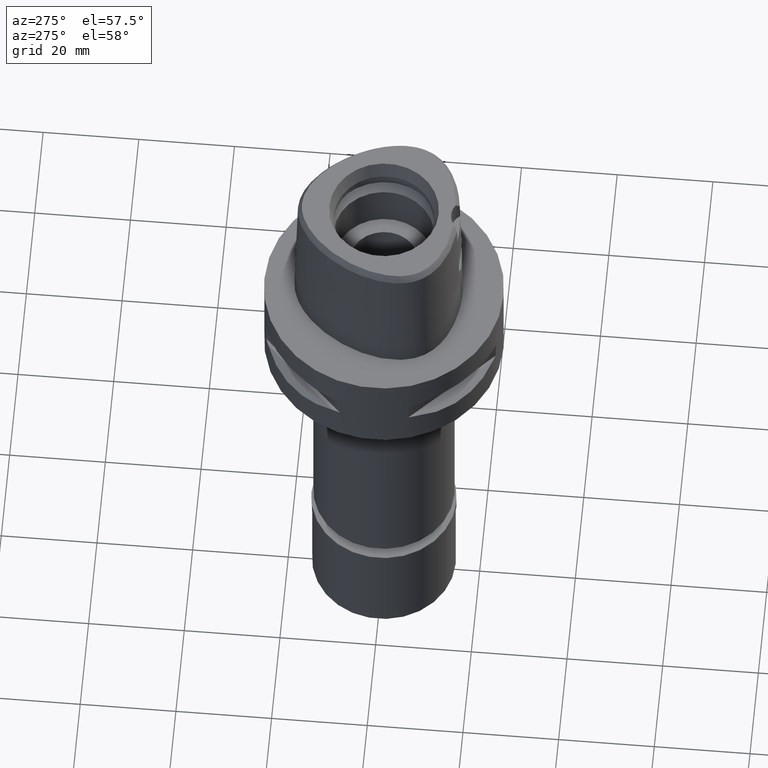
[diagram: clean part render]
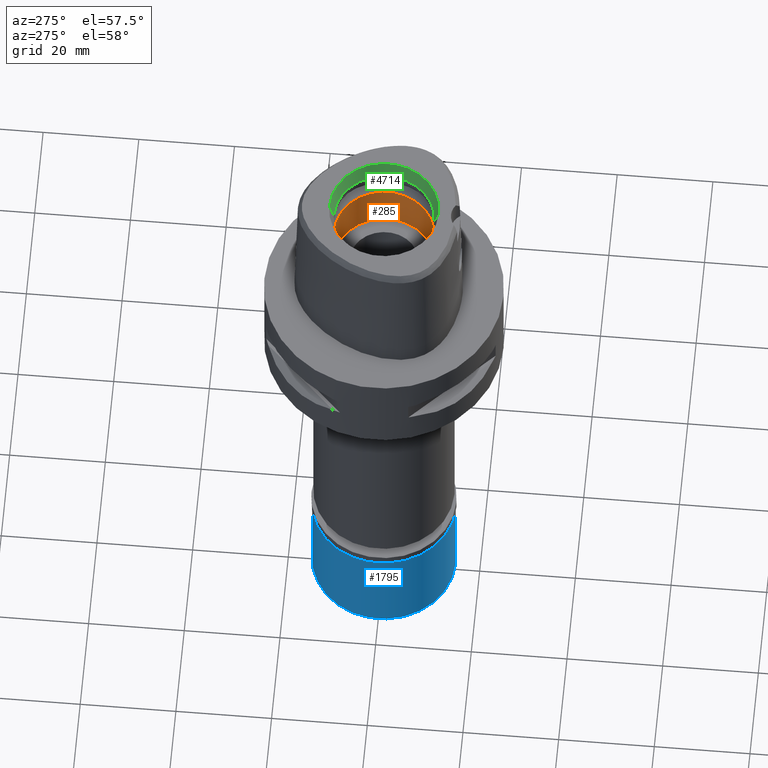
[diagram: same view with three faces highlighted in distinct colors, each labeled with its STEP entity id]
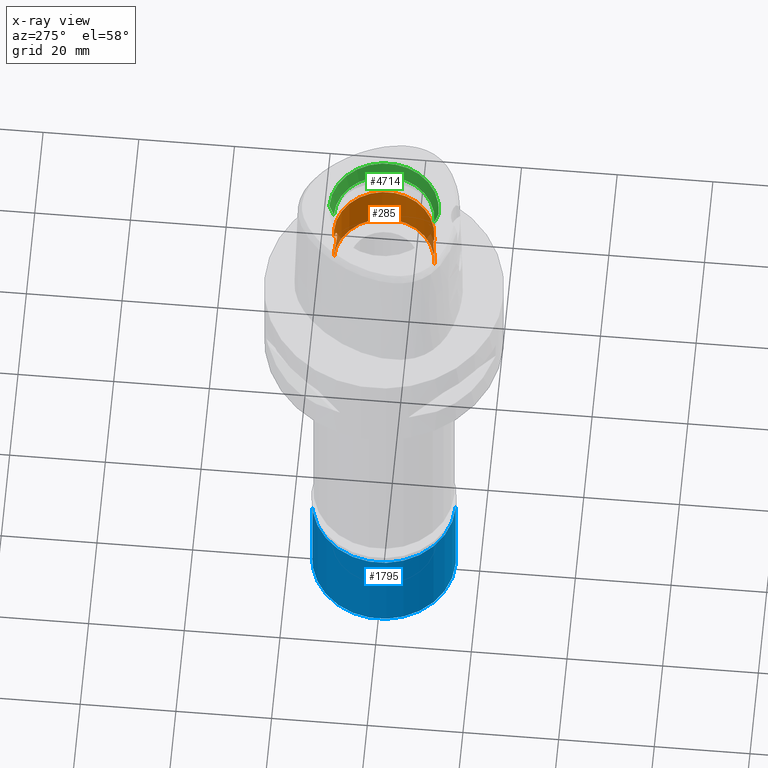
[diagram: x-ray of the same camera — body ghosted, the three highlighted faces saturated]
A machine part, auxiliary view with three faces highlighted in distinct colors.
The next image is the same camera in x-ray (body ghosted, the three faces saturated) — at least one of them is partly hidden behind the body in this view.
Their STEP definitions:

[orange] entity #285 — the highlighted cylindrical surface (partial cylindrical patch) has radius 10.5 mm, axis along (0, 0, -1).
#15 = DIRECTION ( 'NONE',  ( 0.0000000000000000000, -1.000000000000000000, 0.0000000000000000000 ) ) ;
#46 = VERTEX_POINT ( 'NONE', #2469 ) ;
#54 = VECTOR ( 'NONE', #4138, 1000.000000000000000 ) ;
#55 = CARTESIAN_POINT ( 'NONE',  ( 2.528868665928027504, -10.19089896813328266, 15.70508855078493760 ) ) ;
#84 = CARTESIAN_POINT ( 'NONE',  ( 1.323896765677277765, -10.41651376008978325, 16.74949734448019356 ) ) ;
#99 = B_SPLINE_CURVE_WITH_KNOTS ( 'NONE', 3,
 ( #805, #829, #1990, #2311, #4286, #4257, #3479, #1917, #1177, #3829, #3126, #433, #84, #2332, #1202, #881, #481, #2388, #1940, #3521, #2706, #1521, #3037, #2649, #2724, #1143, #4610, #855, #4549, #3449, #2681, #1599, #779, #3091, #3805, #410, #3421, #3109, #55, #1226, #2364, #3880, #549, #128, #521, #4355, #920, #2822, #2778, #944, #3549, #4310, #1270, #4719, #3918, #3947, #2032, #1289, #1684, #152, #1309, #2404, #3185, #1643, #902, #4329, #3145, #4679, #2797, #1668, #2055, #3167, #4699, #2431, #3575, #173, #4666, #4795, #3272, #469, #595, #2396, #2110, #2508, #3132, #4271, #3222, #4031, #893, #995, #2879, #629, #3910, #3649, #493, #2769, #2141, #1713, #3624, #870, #4755, #1389, #2375, #3490 ),
 .UNSPECIFIED., .F., .F.,
 ( 4, 2, 2, 1, 1, 2, 2, 2, 2, 1, 1, 2, 2, 2, 2, 1, 2, 2, 2, 2, 1, 1, 1, 2, 2, 2, 2, 1, 2, 2, 2, 2, 2, 2, 2, 1, 1, 2, 2, 2, 2, 1, 1, 1, 2, 2, 2, 2, 2, 2, 1, 1, 1, 2, 2, 2, 2, 1, 2, 2, 4 ),
 ( 0.0000000000000000000, 0.06249999999992951472, 0.09374999999989434840, 0.1093749999998765987, 0.1171874999998677308, 0.1210937499998632622, 0.1249999999998588074, 0.1562499999998203382, 0.1718749999998008260, 0.1796874999997910560, 0.1835937499997860878, 0.1855468749997836175, 0.1874999999997811473, 0.2187499999997441213, 0.2343749999997252753, 0.2421874999997158384, 0.2460937499997114253, 0.2499999999997069844, 0.2812499999996705968, 0.2968749999996523337, 0.3046874999996431743, 0.3085937499996391775, 0.3105468749996372901, 0.3115234374996369571, 0.3124999999996366240, 0.3437499999996477262, 0.3593749999996534994, 0.3671874999996566080, 0.3710937499996579403, 0.3749999999996592170, 0.4374999999996792566, 0.4687499999996892486, 0.4999999999996992406, 0.5624999999997192246, 0.5937499999997293276, 0.6093749999997343236, 0.6171874999997368771, 0.6210937499997380984, 0.6249999999997393196, 0.6562499999997486455, 0.6718749999997531974, 0.6796874999997555289, 0.6835937499997566391, 0.6855468749997573052, 0.6865234374997576383, 0.6874999999997579714, 0.7187499999997785105, 0.7499999999997989386, 0.7812499999998194777, 0.7968749999998296918, 0.8046874999998347988, 0.8085937499998374633, 0.8105468749998386846, 0.8115234374998394618, 0.8124999999998401279, 0.8437499999998666622, 0.8593749999998798739, 0.8671874999998865352, 0.8710937499998897549, 0.8749999999998930855, 1.000000000000000000 ),
 .UNSPECIFIED. ) ;
#113 = VERTEX_POINT ( 'NONE', #3282 ) ;
#116 = CARTESIAN_POINT ( 'NONE',  ( 0.3776824852751655137, 10.50000000000000355, 17.05000000000000071 ) ) ;
#128 = CARTESIAN_POINT ( 'NONE',  ( 2.719700136812867708, -10.14177672420369447, 15.38140804886839419 ) ) ;
#144 = CARTESIAN_POINT ( 'NONE',  ( 0.0000000000000000000, 10.50000000000000000, 17.05000000000000071 ) ) ;
#152 = CARTESIAN_POINT ( 'NONE',  ( 2.954919872153779714, -10.07594969640612881, 13.23766054668898917 ) ) ;
#173 = CARTESIAN_POINT ( 'NONE',  ( 2.552427928396863166, -10.18503463177848545, 12.33038235610675137 ) ) ;
#178 = CARTESIAN_POINT ( 'NONE',  ( 2.912166724522398553, 10.08826516473213353, 14.90793074597647738 ) ) ;
#200 = CARTESIAN_POINT ( 'NONE',  ( 3.049999831026677377, 10.04726935032737245, 13.81489378007290014 ) ) ;
#234 = CARTESIAN_POINT ( 'NONE',  ( 2.484679344345229079, 10.20182652914184018, 12.23102453892497721 ) ) ;
#258 = CARTESIAN_POINT ( 'NONE',  ( 2.899493436784488232, 10.09216444762106946, 13.03050769528795172 ) ) ;
#283 = CARTESIAN_POINT ( 'NONE',  ( 2.531111734321449536, 10.19034130873206756, 12.29824294131261375 ) ) ;
#285 = ADVANCED_FACE ( 'NONE', ( #2617 ), #1184, .F. ) ;
#292 = AXIS2_PLACEMENT_3D ( 'NONE', #4690, #934, #3200 ) ;
#396 = CARTESIAN_POINT ( 'NONE',  ( 2.552365511455624070, 10.18505070645073651, 15.66971306030419342 ) ) ;
#397 = VECTOR ( 'NONE', #1851, 1000.000000000000000 ) ;
#410 = CARTESIAN_POINT ( 'NONE',  ( 2.500919610565563556, -10.19783081804284031, 15.74597536509110185 ) ) ;
#433 = CARTESIAN_POINT ( 'NONE',  ( 1.236957856289733648, -10.42717367617683877, 16.78940726311529374 ) ) ;
#446 = ORIENTED_EDGE ( 'NONE', *, *, #4447, .F. ) ;
#469 = CARTESIAN_POINT ( 'NONE',  ( 2.342968627457624908, -10.23558722573572766, 12.04475145765551147 ) ) ;
#481 = CARTESIAN_POINT ( 'NONE',  ( 1.601744847466686217, -10.37714138207295811, 16.59579339570974810 ) ) ;
#483 = CARTESIAN_POINT ( 'NONE',  ( 0.0000000000000000000, -10.50000000000000000, 17.05000000000000071 ) ) ;
#493 = CARTESIAN_POINT ( 'NONE',  ( 1.386948097363750909, -10.40799934146660455, 11.28311535730615667 ) ) ;
#521 = CARTESIAN_POINT ( 'NONE',  ( 2.741672579531738485, -10.13585776235383484, 15.33718066085879173 ) ) ;
#541 = CARTESIAN_POINT ( 'NONE',  ( 1.243173268033155754, 10.42607234194794508, 16.78532104131814862 ) ) ;
#549 = CARTESIAN_POINT ( 'NONE',  ( 2.648768239977827399, -10.16058067332577330, 15.51550484575867550 ) ) ;
#574 = CARTESIAN_POINT ( 'NONE',  ( 2.328196717490044421, 10.23898725311153513, 12.02714150818278149 ) ) ;
#594 = CARTESIAN_POINT ( 'NONE',  ( 1.568183029901923264, 10.38223911306204705, 11.38390064694576154 ) ) ;
#595 = CARTESIAN_POINT ( 'NONE',  ( 2.266144854621401361, -10.25299388352025787, 11.95426803284425610 ) ) ;
#628 = CARTESIAN_POINT ( 'NONE',  ( 1.658067691845400482, 10.36825398497829021, 11.44004753343904568 ) ) ;
#629 = CARTESIAN_POINT ( 'NONE',  ( 1.707003811296404328, -10.36032678721340439, 11.47242214210652378 ) ) ;
#656 = CARTESIAN_POINT ( 'NONE',  ( 1.930471181833826044, 10.32097309169637533, 11.63815379021093754 ) ) ;
#731 = CARTESIAN_POINT ( 'NONE',  ( 0.0000000000000000000, 10.50000000000000000, 10.94999999999999929 ) ) ;
#779 = CARTESIAN_POINT ( 'NONE',  ( 2.422046306151929951, -10.21701399604496885, 15.85438239164646923 ) ) ;
#789 = CARTESIAN_POINT ( 'NONE',  ( 0.0000000000000000000, 10.50000000000000000, 20.40000000000000213 ) ) ;
#800 = CARTESIAN_POINT ( 'NONE',  ( 0.0000000000000000000, -10.50000000000000000, 20.40000000000000213 ) ) ;
#805 = CARTESIAN_POINT ( 'NONE',  ( 0.0000000000000000000, -10.50000000000000000, 17.05000000000000071 ) ) ;
#829 = CARTESIAN_POINT ( 'NONE',  ( 0.1867674398480352604, -10.49999999999999467, 17.04999999999999005 ) ) ;
#855 = CARTESIAN_POINT ( 'NONE',  ( 2.103211535601106963, -10.28719430385092437, 16.20890183210499913 ) ) ;
#859 = DIRECTION ( 'NONE',  ( 0.0000000000000000000, 0.0000000000000000000, 1.000000000000000000 ) ) ;
#870 = CARTESIAN_POINT ( 'NONE',  ( 1.188897683297293284, -10.43236352860217053, 11.19123487431793151 ) ) ;
#881 = CARTESIAN_POINT ( 'NONE',  ( 1.568097863131003189, -10.38225193758933784, 16.61615038516162102 ) ) ;
#893 = CARTESIAN_POINT ( 'NONE',  ( 1.716860572636586868, -10.35869652779481065, 11.47910248954204704 ) ) ;
#902 = CARTESIAN_POINT ( 'NONE',  ( 2.834826346757756799, -10.11014960679703911, 12.87464356492052531 ) ) ;
#920 = CARTESIAN_POINT ( 'NONE',  ( 2.787064406588477983, -10.12345627881758148, 15.23924730534490024 ) ) ;
#927 = CARTESIAN_POINT ( 'NONE',  ( 2.787138828272704760, 10.12343660367295328, 12.76091999483814021 ) ) ;
#934 = DIRECTION ( 'NONE',  ( 0.0000000000000000000, 0.0000000000000000000, -1.000000000000000000 ) ) ;
#944 = CARTESIAN_POINT ( 'NONE',  ( 2.813871346667223605, -10.11602783675715500, 15.17677601548344590 ) ) ;
#951 = CARTESIAN_POINT ( 'NONE',  ( 1.601831701828121624, 10.37712803855541388, 11.40426016689256450 ) ) ;
#972 = EDGE_CURVE ( 'NONE', #2074, #3538, #3042, .T. ) ;
#994 = CARTESIAN_POINT ( 'NONE',  ( 0.6689123132084389134, 10.47883578122621628, 11.02262632832680822 ) ) ;
#995 = CARTESIAN_POINT ( 'NONE',  ( 1.711377921381092904, -10.35960407682640927, 11.47538311467915051 ) ) ;
#997 = VERTEX_POINT ( 'NONE', #789 ) ;
#1031 = CARTESIAN_POINT ( 'NONE',  ( 2.249117324496113568, 10.25680736615496791, 11.93506107646933501 ) ) ;
#1132 = CARTESIAN_POINT ( 'NONE',  ( 2.549768802785277177, 10.18570099339350321, 15.67367355964688258 ) ) ;
#1140 = CARTESIAN_POINT ( 'NONE',  ( 0.0000000000000000000, -10.50000000000000000, 10.94999999999999929 ) ) ;
#1143 = CARTESIAN_POINT ( 'NONE',  ( 2.036590477875869887, -10.30056457203203024, 16.27059992390260490 ) ) ;
#1157 = CARTESIAN_POINT ( 'NONE',  ( 2.266059277742235700, 10.25301290800983267, 16.04582614264049312 ) ) ;
#1177 = CARTESIAN_POINT ( 'NONE',  ( 1.104310761165587129, -10.44170151709308136, 16.84309062177460348 ) ) ;
#1184 = CYLINDRICAL_SURFACE ( 'NONE', #2604, 10.50000000000000000 ) ;
#1202 = CARTESIAN_POINT ( 'NONE',  ( 1.500968808066890148, -10.39222569595904844, 16.65561435862955619 ) ) ;
#1220 = ORIENTED_EDGE ( 'NONE', *, *, #2585, .F. ) ;
#1226 = CARTESIAN_POINT ( 'NONE',  ( 2.531016047136658731, -10.19036528538620878, 15.70189936972407274 ) ) ;
#1227 = DIRECTION ( 'NONE',  ( 0.0000000000000000000, 0.0000000000000000000, 1.000000000000000000 ) ) ;
#1236 = CARTESIAN_POINT ( 'NONE',  ( 1.521598319489877005, 10.38951171456277400, 16.64529504370051427 ) ) ;
#1258 = CARTESIAN_POINT ( 'NONE',  ( 1.342293398566716034, 10.41383903480987883, 16.73918355943970226 ) ) ;
#1270 = CARTESIAN_POINT ( 'NONE',  ( 3.013860203605535748, -10.05850444702513258, 14.47860310561554975 ) ) ;
#1275 = CARTESIAN_POINT ( 'NONE',  ( 0.1867762932006805654, 10.50000000000000000, 10.94999999999999218 ) ) ;
#1289 = CARTESIAN_POINT ( 'NONE',  ( 3.033122084150415176, -10.05271522072828461, 13.62415721944560865 ) ) ;
#1309 = CARTESIAN_POINT ( 'NONE',  ( 2.912211511062697156, -10.08825325305797627, 13.09221294453771911 ) ) ;
#1314 = CARTESIAN_POINT ( 'NONE',  ( 2.136201039485438713, 10.28040836939875824, 11.82297045442740568 ) ) ;
#1338 = CARTESIAN_POINT ( 'NONE',  ( 1.141794485348839538, 10.43767506429867531, 11.17176097919018218 ) ) ;
#1364 = CARTESIAN_POINT ( 'NONE',  ( 2.531295471045067469, 10.19029565195985754, 12.29851382421137806 ) ) ;
#1377 = CARTESIAN_POINT ( 'NONE',  ( 2.574295022007124789, 10.17953738072135117, 15.63579337297413296 ) ) ;
#1388 = CARTESIAN_POINT ( 'NONE',  ( 0.9113412802442690808, 10.46031708979915464, 11.08889911175420906 ) ) ;
#1389 = CARTESIAN_POINT ( 'NONE',  ( 0.7784719832900152126, -10.47826499193357641, 11.02113842329111115 ) ) ;
#1423 = CARTESIAN_POINT ( 'NONE',  ( 2.751833750823203584, 10.13317589947081565, 15.31899371384233177 ) ) ;
#1482 = CARTESIAN_POINT ( 'NONE',  ( 2.556057301366347456, 10.18412497569700292, 15.66405603269551605 ) ) ;
#1521 = CARTESIAN_POINT ( 'NONE',  ( 1.740926287971506836, -10.35483511188262185, 16.50537809591427063 ) ) ;
#1590 = EDGE_CURVE ( 'NONE', #113, #2410, #2011, .T. ) ;
#1599 = CARTESIAN_POINT ( 'NONE',  ( 2.328117555959193563, -10.23900546424033919, 15.97295162130381918 ) ) ;
#1643 = CARTESIAN_POINT ( 'NONE',  ( 2.844275244107489442, -10.10750057597628526, 12.89874350943842174 ) ) ;
#1668 = CARTESIAN_POINT ( 'NONE',  ( 2.658794028149571442, -10.15786896108676451, 12.50467189553370240 ) ) ;
#1677 = CARTESIAN_POINT ( 'NONE',  ( 1.729811899946607667, 10.35653978205561110, 16.51205017558800492 ) ) ;
#1684 = CARTESIAN_POINT ( 'NONE',  ( 2.978168158509828967, -10.06911518369448721, 13.33467206363919111 ) ) ;
#1688 = CARTESIAN_POINT ( 'NONE',  ( 2.844221904569359971, 10.10751425218369270, 15.10139423921097901 ) ) ;
#1712 = CARTESIAN_POINT ( 'NONE',  ( 2.422125717788197186, 10.21699491830628403, 12.14572125794267698 ) ) ;
#1713 = CARTESIAN_POINT ( 'NONE',  ( 1.243239666746700278, -10.42606412921035286, 11.21470856859099108 ) ) ;
#1738 = CARTESIAN_POINT ( 'NONE',  ( 2.648850664410687727, 10.16055922834953584, 12.48463899832804991 ) ) ;
#1764 = CARTESIAN_POINT ( 'NONE',  ( 3.032693110682628035, 10.05288456797676488, 13.61931366745557881 ) ) ;
#1790 = CARTESIAN_POINT ( 'NONE',  ( 0.9839371454469273415, 10.45386861689152980, 11.11227514083273959 ) ) ;
#1851 = DIRECTION ( 'NONE',  ( 0.0000000000000000000, 0.0000000000000000000, 1.000000000000000000 ) ) ;
#1898 = DIRECTION ( 'NONE',  ( 0.0000000000000000000, 0.0000000000000000000, 1.000000000000000000 ) ) ;
#1906 = CARTESIAN_POINT ( 'NONE',  ( 2.078056134096792462, 10.29275713199687203, 16.23654017618635237 ) ) ;
#1917 = CARTESIAN_POINT ( 'NONE',  ( 1.068247455599155682, -10.44548337543123928, 16.85701016503113792 ) ) ;
#1940 = CARTESIAN_POINT ( 'NONE',  ( 1.657978121026951523, -10.36826822009252247, 16.56001047764421941 ) ) ;
#1990 = CARTESIAN_POINT ( 'NONE',  ( 0.3787085517134362589, -10.49470953150507491, 17.03279839123862516 ) ) ;
#1998 = CARTESIAN_POINT ( 'NONE',  ( 1.612746601672594204, 10.37583416522086921, 16.59107516795642212 ) ) ;
#2011 = B_SPLINE_CURVE_WITH_KNOTS ( 'NONE', 3,
 ( #731, #1275, #3836, #994, #2507, #1388, #1790, #4775, #4754, #4064, #1338, #2852, #2483, #2167, #2060, #594, #951, #2109, #628, #4725, #3623, #3976, #2878, #656, #4382, #2459, #3191, #3999, #3271, #1314, #1031, #574, #1712, #3953, #234, #3579, #4030, #2803, #2081, #283, #1364, #3676, #1738, #2828, #3302, #2140, #927, #4407, #3596, #2912, #258, #4433, #1764, #200, #4794, #4364, #2534, #4826, #178, #4335, #2438, #1688, #3221, #2559, #4089, #1423, #2941, #3258, #4786, #2153, #1377, #3688, #1482, #396, #1132, #3075, #3005, #2638, #1157, #1906, #3412, #4596, #3049, #2663, #4196, #1677, #4270, #3866, #4665, #4243, #1998, #1236, #4708, #1258, #3909, #541, #2444, #3960, #3115, #3510, #116, #144 ),
 .UNSPECIFIED., .F., .F.,
 ( 4, 2, 2, 1, 1, 2, 2, 2, 2, 1, 1, 2, 2, 2, 2, 1, 2, 2, 2, 2, 1, 1, 1, 2, 2, 2, 2, 1, 2, 2, 2, 2, 2, 2, 1, 1, 2, 2, 2, 2, 1, 1, 1, 2, 2, 2, 2, 2, 2, 1, 1, 1, 2, 2, 2, 2, 1, 2, 2, 4 ),
 ( 0.0000000000000000000, 0.06250000000001761091, 0.09375000000002643719, 0.1093750000000307671, 0.1171875000000330014, 0.1210937500000340700, 0.1250000000000351108, 0.1562500000000431599, 0.1718750000000473233, 0.1796875000000493772, 0.1835937500000502653, 0.1855468750000505429, 0.1875000000000507927, 0.2187500000000545675, 0.2343750000000564271, 0.2421875000000574540, 0.2460937500000579814, 0.2500000000000585088, 0.2812500000000640044, 0.2968750000000667799, 0.3046875000000682232, 0.3085937500000686118, 0.3105468750000692224, 0.3115234375000692224, 0.3125000000000692224, 0.3437500000000695555, 0.3593750000000697220, 0.3671875000000698330, 0.3710937500000698330, 0.3750000000000697775, 0.4375000000000721090, 0.5000000000000743849, 0.5625000000000767164, 0.5937500000000774936, 0.6093750000000777156, 0.6171875000000774936, 0.6210937500000772715, 0.6250000000000770495, 0.6562500000000730527, 0.6718750000000707212, 0.6796875000000693889, 0.6835937500000687228, 0.6855468750000688338, 0.6865234375000683897, 0.6875000000000680567, 0.7187500000000501821, 0.7500000000000323075, 0.7812500000000145439, 0.7968750000000058842, 0.8046875000000015543, 0.8085937499999997780, 0.8105468749999988898, 0.8115234374999990008, 0.8124999999999990008, 0.8437499999999971134, 0.8593749999999964473, 0.8671874999999961142, 0.8710937499999961142, 0.8749999999999961142, 1.000000000000000000 ),
 .UNSPECIFIED. ) ;
#2032 = CARTESIAN_POINT ( 'NONE',  ( 3.050005080898542165, -10.04725334564248307, 13.81500911718046076 ) ) ;
#2055 = CARTESIAN_POINT ( 'NONE',  ( 2.619496371660233969, -10.16802340642455604, 12.43749825123569508 ) ) ;
#2060 = CARTESIAN_POINT ( 'NONE',  ( 1.501050544132918052, 10.39221389089891545, 11.34443176979934798 ) ) ;
#2074 = VERTEX_POINT ( 'NONE', #3176 ) ;
#2081 = CARTESIAN_POINT ( 'NONE',  ( 2.528963694662238026, 10.19087517456364900, 12.29505239684839424 ) ) ;
#2109 = CARTESIAN_POINT ( 'NONE',  ( 1.641185955453579481, 10.37094866851832897, 11.42913987663381903 ) ) ;
#2110 = CARTESIAN_POINT ( 'NONE',  ( 1.989381541700123712, -10.31000550252612946, 11.68587608860982208 ) ) ;
#2130 = EDGE_CURVE ( 'NONE', #46, #2074, #2416, .T. ) ;
#2140 = CARTESIAN_POINT ( 'NONE',  ( 2.772394022729378626, 10.12748308155549459, 12.72842159383966454 ) ) ;
#2141 = CARTESIAN_POINT ( 'NONE',  ( 1.276169219736535076, -10.42207001621971330, 11.22971359884679643 ) ) ;
#2153 = CARTESIAN_POINT ( 'NONE',  ( 2.599143935910001701, 10.17324269225243683, 15.59630357577611903 ) ) ;
#2164 = ORIENTED_EDGE ( 'NONE', *, *, #4520, .T. ) ;
#2167 = CARTESIAN_POINT ( 'NONE',  ( 1.456516305005868039, 10.39853391455496734, 11.31978635712424719 ) ) ;
#2219 = CARTESIAN_POINT ( 'NONE',  ( 0.0000000000000000000, 10.50000000000000000, 10.00000000000000000 ) ) ;
#2235 = CARTESIAN_POINT ( 'NONE',  ( 0.0000000000000000000, -10.50000000000000000, 17.05000000000000071 ) ) ;
#2303 = ORIENTED_EDGE ( 'NONE', *, *, #4518, .T. ) ;
#2311 = CARTESIAN_POINT ( 'NONE',  ( 0.6688774812611679721, -10.47883812602031561, 16.97738131204618384 ) ) ;
#2332 = CARTESIAN_POINT ( 'NONE',  ( 1.456436929924989965, -10.39854506465477968, 16.68025671205563398 ) ) ;
#2364 = CARTESIAN_POINT ( 'NONE',  ( 2.531198843314137026, -10.19031986401626710, 15.70162992011681347 ) ) ;
#2366 = DIRECTION ( 'NONE',  ( 0.0000000000000000000, -1.000000000000000000, 0.0000000000000000000 ) ) ;
#2375 = CARTESIAN_POINT ( 'NONE',  ( 0.3776990394879757851, -10.49999999999999822, 10.94999999999999751 ) ) ;
#2388 = CARTESIAN_POINT ( 'NONE',  ( 1.641097190152380758, -10.37096263372367666, 16.57091677865613732 ) ) ;
#2396 = CARTESIAN_POINT ( 'NONE',  ( 2.078135821199520006, -10.29274126334308193, 11.76353330178664436 ) ) ;
#2404 = CARTESIAN_POINT ( 'NONE',  ( 2.888899562011218780, -10.09491797827999449, 13.01950824191362699 ) ) ;
#2410 = VERTEX_POINT ( 'NONE', #4042 ) ;
#2416 = CIRCLE ( 'NONE', #292, 10.50000000000000000 ) ;
#2431 = CARTESIAN_POINT ( 'NONE',  ( 2.561634872386847395, -10.18272450818466446, 12.34452234617988609 ) ) ;
#2438 = CARTESIAN_POINT ( 'NONE',  ( 2.858142235063926062, 10.10360451450117658, 15.06521770040185615 ) ) ;
#2439 = AXIS2_PLACEMENT_3D ( 'NONE', #3501, #1898, #2366 ) ;
#2444 = CARTESIAN_POINT ( 'NONE',  ( 1.210530326363583598, 10.42987676988509271, 16.79950987502768811 ) ) ;
#2459 = CARTESIAN_POINT ( 'NONE',  ( 2.036679914429457394, 10.30054692282957163, 11.72948026184644377 ) ) ;
#2469 = CARTESIAN_POINT ( 'NONE',  ( 0.0000000000000000000, 10.50000000000000000, 10.00000000000000000 ) ) ;
#2483 = CARTESIAN_POINT ( 'NONE',  ( 1.323968914929033680, 10.41650450081754364, 11.25053714607331834 ) ) ;
#2507 = CARTESIAN_POINT ( 'NONE',  ( 0.7660006551196487656, 10.47222196285940932, 11.04602839572770456 ) ) ;
#2508 = CARTESIAN_POINT ( 'NONE',  ( 1.870655397227993788, -10.33198768520815669, 11.59049268858693438 ) ) ;
#2534 = CARTESIAN_POINT ( 'NONE',  ( 2.978136503180965011, 10.06912454526318612, 14.66547041873887913 ) ) ;
#2559 = CARTESIAN_POINT ( 'NONE',  ( 2.829305774436908116, 10.11169290979873736, 15.13914673285671952 ) ) ;
#2585 = EDGE_CURVE ( 'NONE', #2866, #3538, #99, .T. ) ;
#2604 = AXIS2_PLACEMENT_3D ( 'NONE', #4191, #4517, #15 ) ;
#2617 = FACE_OUTER_BOUND ( 'NONE', #2842, .T. ) ;
#2638 = CARTESIAN_POINT ( 'NONE',  ( 2.342902608005041021, 10.23560269218153707, 15.95532767840925814 ) ) ;
#2649 = CARTESIAN_POINT ( 'NONE',  ( 1.930388096063102799, -10.32098858174314415, 16.36191406334469889 ) ) ;
#2663 = CARTESIAN_POINT ( 'NONE',  ( 1.781680532592007093, 10.34771082985336754, 16.47559481631715883 ) ) ;
#2681 = CARTESIAN_POINT ( 'NONE',  ( 2.249032427112489074, -10.25682621327920252, 16.06503230505761337 ) ) ;
#2706 = CARTESIAN_POINT ( 'NONE',  ( 1.676718924548066481, -10.36525237659834708, 16.54777042361276784 ) ) ;
#2724 = CARTESIAN_POINT ( 'NONE',  ( 1.971913834745691041, -10.31316905232283787, 16.32752121028857673 ) ) ;
#2769 = CARTESIAN_POINT ( 'NONE',  ( 1.342365910254549100, -10.41382946864366232, 11.26085191158715482 ) ) ;
#2778 = CARTESIAN_POINT ( 'NONE',  ( 2.810076276443413068, -10.11708282625331634, 15.18579330039645470 ) ) ;
#2797 = CARTESIAN_POINT ( 'NONE',  ( 2.683269133176498844, -10.15143825073914741, 12.54912944303389821 ) ) ;
#2803 = CARTESIAN_POINT ( 'NONE',  ( 2.525703912823880071, 10.19168522689453660, 12.29022032175083012 ) ) ;
#2822 = CARTESIAN_POINT ( 'NONE',  ( 2.800979720946436213, -10.11960603068971132, 15.20712345414295541 ) ) ;
#2828 = CARTESIAN_POINT ( 'NONE',  ( 2.719777489732114528, 10.14175641246906068, 12.61874419158478489 ) ) ;
#2842 = EDGE_LOOP ( 'NONE', ( #3742, #4886, #4823, #1220, #2303, #2164, #446, #3366 ) ) ;
#2852 = CARTESIAN_POINT ( 'NONE',  ( 1.237025000633577898, 10.42716557871848693, 11.21062230838443696 ) ) ;
#2856 = EDGE_CURVE ( 'NONE', #46, #113, #4509, .T. ) ;
#2866 = VERTEX_POINT ( 'NONE', #2235 ) ;
#2878 = CARTESIAN_POINT ( 'NONE',  ( 1.811923068246242385, 10.34268283242720976, 11.54447952460165361 ) ) ;
#2879 = CARTESIAN_POINT ( 'NONE',  ( 1.707746356238994512, -10.36020401293069249, 11.47292517123250022 ) ) ;
#2912 = CARTESIAN_POINT ( 'NONE',  ( 2.813945975879055705, 10.11600799454591382, 12.82340245404722801 ) ) ;
#2941 = CARTESIAN_POINT ( 'NONE',  ( 2.683217006026428209, 10.15145179342978032, 15.45096686760997251 ) ) ;
#3005 = CARTESIAN_POINT ( 'NONE',  ( 2.465945275219215471, 10.20663448905911075, 15.79766872926415289 ) ) ;
#3037 = CARTESIAN_POINT ( 'NONE',  ( 1.811842809112848895, -10.34269679768338257, 16.45557948583557462 ) ) ;
#3042 = LINE ( 'NONE', #4161, #397 ) ;
#3049 = CARTESIAN_POINT ( 'NONE',  ( 1.833369269871662155, 10.33867676249399103, 16.43784289474635685 ) ) ;
#3075 = CARTESIAN_POINT ( 'NONE',  ( 2.512921878341771720, 10.19492176239768177, 15.72972677539245723 ) ) ;
#3091 = CARTESIAN_POINT ( 'NONE',  ( 2.449231481420490297, -10.21047344920699906, 15.81807234377296112 ) ) ;
#3109 = CARTESIAN_POINT ( 'NONE',  ( 2.525609857181217333, -10.19170874939327298, 15.70991860409097818 ) ) ;
#3115 = CARTESIAN_POINT ( 'NONE',  ( 1.179391020529872769, 10.43344386839382842, 16.81277616977016365 ) ) ;
#3126 = CARTESIAN_POINT ( 'NONE',  ( 1.141732985535315326, -10.43768196579646279, 16.82826384510322626 ) ) ;
#3132 = CARTESIAN_POINT ( 'NONE',  ( 1.833449799978573935, -10.33866271675340975, 11.56221769112445052 ) ) ;
#3145 = CARTESIAN_POINT ( 'NONE',  ( 2.791214425727966741, -10.12233497789926773, 12.76723173827698155 ) ) ;
#3167 = CARTESIAN_POINT ( 'NONE',  ( 2.599201387564405330, -10.17322772404753906, 12.40379000138812771 ) ) ;
#3176 = CARTESIAN_POINT ( 'NONE',  ( 0.0000000000000000000, -10.50000000000000000, 10.00000000000000000 ) ) ;
#3185 = CARTESIAN_POINT ( 'NONE',  ( 2.858194183440916802, -10.10359114810717074, 12.93492166893522999 ) ) ;
#3191 = CARTESIAN_POINT ( 'NONE',  ( 2.069615633389336740, 10.29402508846353470, 11.75927893724386131 ) ) ;
#3200 = DIRECTION ( 'NONE',  ( 0.0000000000000000000, 1.000000000000000000, 0.0000000000000000000 ) ) ;
#3221 = CARTESIAN_POINT ( 'NONE',  ( 2.834772115109920776, 10.11016348655484265, 15.12549303329452854 ) ) ;
#3222 = CARTESIAN_POINT ( 'NONE',  ( 1.756949084913084214, -10.35196908568974550, 11.50675482054573884 ) ) ;
#3258 = CARTESIAN_POINT ( 'NONE',  ( 2.658740901850444871, 10.15788282424454536, 15.49542257597989803 ) ) ;
#3271 = CARTESIAN_POINT ( 'NONE',  ( 2.125917809821826321, 10.28253520498292239, 11.81294270821035397 ) ) ;
#3272 = CARTESIAN_POINT ( 'NONE',  ( 2.466005327969370775, -10.20661944846525593, 12.20241368106630375 ) ) ;
#3282 = CARTESIAN_POINT ( 'NONE',  ( 0.0000000000000000000, 10.50000000000000000, 10.94999999999999929 ) ) ;
#3302 = CARTESIAN_POINT ( 'NONE',  ( 2.741748741094037101, 10.13583772775561087, 12.66297536229706822 ) ) ;
#3366 = ORIENTED_EDGE ( 'NONE', *, *, #1590, .F. ) ;
#3412 = CARTESIAN_POINT ( 'NONE',  ( 1.989303514894269931, 10.31002034770783027, 16.31419092009021554 ) ) ;
#3421 = CARTESIAN_POINT ( 'NONE',  ( 2.517739876222782058, -10.19366303897557202, 15.72151130424244414 ) ) ;
#3449 = CARTESIAN_POINT ( 'NONE',  ( 2.136100343734112617, -10.28042929747009815, 16.17712836185316760 ) ) ;
#3479 = CARTESIAN_POINT ( 'NONE',  ( 0.9838845370238309407, -10.45387372780990809, 16.88774268329863304 ) ) ;
#3490 = CARTESIAN_POINT ( 'NONE',  ( 0.0000000000000000000, -10.50000000000000000, 10.94999999999999929 ) ) ;
#3501 = CARTESIAN_POINT ( 'NONE',  ( 0.0000000000000000000, 1.483659597167000164E-14, 20.40000000000000213 ) ) ;
#3510 = CARTESIAN_POINT ( 'NONE',  ( 0.7784327284049403772, 10.47826738559798798, 16.97886791811378160 ) ) ;
#3515 = VERTEX_POINT ( 'NONE', #800 ) ;
#3521 = CARTESIAN_POINT ( 'NONE',  ( 1.669234959747533331, -10.36646163797745679, 16.55268481105852629 ) ) ;
#3538 = VERTEX_POINT ( 'NONE', #1140 ) ;
#3548 = VECTOR ( 'NONE', #859, 1000.000000000000000 ) ;
#3549 = CARTESIAN_POINT ( 'NONE',  ( 2.899433381332750859, -10.09218068781909317, 14.96967267542248159 ) ) ;
#3575 = CARTESIAN_POINT ( 'NONE',  ( 2.556119287377531357, -10.18410899365403388, 12.33603918460904758 ) ) ;
#3579 = CARTESIAN_POINT ( 'NONE',  ( 2.501007571786722394, 10.19780901880299595, 12.25415054794111924 ) ) ;
#3596 = CARTESIAN_POINT ( 'NONE',  ( 2.810150186842900855, 10.11706320198501885, 12.81438185252744155 ) ) ;
#3623 = CARTESIAN_POINT ( 'NONE',  ( 1.676810051163566850, 10.36523773137657933, 11.45228955112448688 ) ) ;
#3624 = CARTESIAN_POINT ( 'NONE',  ( 1.210594587562798585, -10.42986900100492065, 11.20051790911941758 ) ) ;
#3649 = CARTESIAN_POINT ( 'NONE',  ( 1.521680657581645058, -10.38949967355637405, 11.35475204899650414 ) ) ;
#3676 = CARTESIAN_POINT ( 'NONE',  ( 2.594875644333037634, 10.17449012125668695, 12.39333396167641510 ) ) ;
#3688 = CARTESIAN_POINT ( 'NONE',  ( 2.561573521332526582, 10.18274035299798541, 15.65557258540480134 ) ) ;
#3742 = ORIENTED_EDGE ( 'NONE', *, *, #2856, .F. ) ;
#3805 = CARTESIAN_POINT ( 'NONE',  ( 2.484594037386860244, -10.20184754279077666, 15.76909523304286687 ) ) ;
#3829 = CARTESIAN_POINT ( 'NONE',  ( 1.128329994157148075, -10.43913894641584861, 16.83364393760651723 ) ) ;
#3836 = CARTESIAN_POINT ( 'NONE',  ( 0.3787274524817912935, 10.49470894530655762, 10.96720324273533897 ) ) ;
#3866 = CARTESIAN_POINT ( 'NONE',  ( 1.711288638951228291, 10.35961863196446586, 16.52467740562624599 ) ) ;
#3880 = CARTESIAN_POINT ( 'NONE',  ( 2.594787844664584675, -10.17451272417047825, 15.60680824590878757 ) ) ;
#3909 = CARTESIAN_POINT ( 'NONE',  ( 1.276100751158458557, 10.42207867785849551, 16.77031792542443966 ) ) ;
#3910 = CARTESIAN_POINT ( 'NONE',  ( 1.612833193455769809, -10.37582084644413172, 11.40897843857475102 ) ) ;
#3918 = CARTESIAN_POINT ( 'NONE',  ( 3.045675422398149923, -10.04867475032002666, 14.18894089495660360 ) ) ;
#3947 = CARTESIAN_POINT ( 'NONE',  ( 3.049997457825905034, -10.04726768335126152, 14.09262106841230988 ) ) ;
#3953 = CARTESIAN_POINT ( 'NONE',  ( 2.449312465965688190, 10.21045377916451891, 12.18203659319809518 ) ) ;
#3960 = CARTESIAN_POINT ( 'NONE',  ( 1.188834861623505379, 10.43237100269823436, 16.80879171232259850 ) ) ;
#3976 = CARTESIAN_POINT ( 'NONE',  ( 1.741009038500602957, 10.35482127465666480, 11.49467963127022685 ) ) ;
#3999 = CARTESIAN_POINT ( 'NONE',  ( 2.103306347312866365, 10.28717493434250052, 11.79118843242767412 ) ) ;
#4030 = CARTESIAN_POINT ( 'NONE',  ( 2.517831763549171153, 10.19364012408455267, 12.27862306712792595 ) ) ;
#4031 = CARTESIAN_POINT ( 'NONE',  ( 1.729899245027333832, -10.35652539926146964, 11.48800997733543561 ) ) ;
#4042 = CARTESIAN_POINT ( 'NONE',  ( 0.0000000000000000000, 10.50000000000000000, 17.05000000000000071 ) ) ;
#4064 = CARTESIAN_POINT ( 'NONE',  ( 1.128390770668995069, 10.43913220284297871, 11.16638025997088413 ) ) ;
#4089 = CARTESIAN_POINT ( 'NONE',  ( 2.791161911923097261, 10.12234823481195178, 15.23288588798777887 ) ) ;
#4138 = DIRECTION ( 'NONE',  ( 0.0000000000000000000, 0.0000000000000000000, 1.000000000000000000 ) ) ;
#4157 = LINE ( 'NONE', #4215, #4741 ) ;
#4161 = CARTESIAN_POINT ( 'NONE',  ( 0.0000000000000000000, -10.50000000000000000, 10.00000000000000000 ) ) ;
#4191 = CARTESIAN_POINT ( 'NONE',  ( 0.0000000000000000000, 1.610410540878999754E-14, 31.50000000000000000 ) ) ;
#4195 = CIRCLE ( 'NONE', #2439, 10.50000000000000000 ) ;
#4196 = CARTESIAN_POINT ( 'NONE',  ( 1.756864160047973744, 10.35198327950656960, 16.49330503797395053 ) ) ;
#4215 = CARTESIAN_POINT ( 'NONE',  ( 0.0000000000000000000, 10.50000000000000000, 17.05000000000000071 ) ) ;
#4243 = CARTESIAN_POINT ( 'NONE',  ( 1.706913597192770915, 10.36034146067852824, 16.52763878149811205 ) ) ;
#4257 = CARTESIAN_POINT ( 'NONE',  ( 0.9112927875690969293, -10.46032148628809821, 16.91111601522402452 ) ) ;
#4261 = LINE ( 'NONE', #483, #3548 ) ;
#4270 = CARTESIAN_POINT ( 'NONE',  ( 1.716771890589201988, 10.35871102781854169, 16.52095790634768591 ) ) ;
#4271 = CARTESIAN_POINT ( 'NONE',  ( 1.781763810728749897, -10.34769672004815533, 11.52446512619911090 ) ) ;
#4286 = CARTESIAN_POINT ( 'NONE',  ( 0.7659603749334191747, -10.47222504040166413, 16.95398183797882297 ) ) ;
#4310 = CARTESIAN_POINT ( 'NONE',  ( 2.957410717728170990, -10.07534498681893709, 14.77193191733126199 ) ) ;
#4329 = CARTESIAN_POINT ( 'NONE',  ( 2.829361163358425024, -10.11167872823986613, 12.86099082516203751 ) ) ;
#4335 = CARTESIAN_POINT ( 'NONE',  ( 2.888851203371873400, 10.09493059036141460, 14.98063416284226790 ) ) ;
#4355 = CARTESIAN_POINT ( 'NONE',  ( 2.772319110776069184, -10.12750285136528561, 15.27174168419082534 ) ) ;
#4364 = CARTESIAN_POINT ( 'NONE',  ( 3.033106798431643103, 10.05272106261938347, 14.37597179214610321 ) ) ;
#4382 = CARTESIAN_POINT ( 'NONE',  ( 1.971998943815246319, 10.31315283188832410, 11.67255075536917808 ) ) ;
#4407 = CARTESIAN_POINT ( 'NONE',  ( 2.801053816413901831, 10.11958639361669121, 12.79304847579425619 ) ) ;
#4433 = CARTESIAN_POINT ( 'NONE',  ( 2.957454687630760137, 10.07533207755579596, 13.22824138619719037 ) ) ;
#4447 = EDGE_CURVE ( 'NONE', #2410, #997, #4157, .T. ) ;
#4509 = LINE ( 'NONE', #2219, #54 ) ;
#4517 = DIRECTION ( 'NONE',  ( 0.0000000000000000000, 0.0000000000000000000, -1.000000000000000000 ) ) ;
#4518 = EDGE_CURVE ( 'NONE', #2866, #3515, #4261, .T. ) ;
#4520 = EDGE_CURVE ( 'NONE', #3515, #997, #4195, .T. ) ;
#4549 = CARTESIAN_POINT ( 'NONE',  ( 2.125820991384376413, -10.28255521734048017, 16.18715138478157201 ) ) ;
#4596 = CARTESIAN_POINT ( 'NONE',  ( 1.870575969376009562, 10.33200182685042634, 16.40956895834974461 ) ) ;
#4610 = CARTESIAN_POINT ( 'NONE',  ( 2.069523711590793624, -10.29404353534653893, 16.24080587214390192 ) ) ;
#4665 = CARTESIAN_POINT ( 'NONE',  ( 1.707656667443936849, 10.36021860589452359, 16.52713543650067152 ) ) ;
#4666 = CARTESIAN_POINT ( 'NONE',  ( 2.549831744840582726, -10.18568479865094112, 12.32642233344095573 ) ) ;
#4679 = CARTESIAN_POINT ( 'NONE',  ( 2.751884679008838042, -10.13316287932903847, 12.68111214655986352 ) ) ;
#4690 = CARTESIAN_POINT ( 'NONE',  ( 0.0000000000000000000, 1.610410540878999754E-14, 10.00000000000000000 ) ) ;
#4699 = CARTESIAN_POINT ( 'NONE',  ( 2.574354970550871258, -10.17952184411067584, 12.36430098328962046 ) ) ;
#4708 = CARTESIAN_POINT ( 'NONE',  ( 1.386873019028591614, 10.40800951961782772, 16.71692290240554968 ) ) ;
#4719 = CARTESIAN_POINT ( 'NONE',  ( 3.027607236360491338, -10.05429310237827423, 14.38135529722916139 ) ) ;
#4725 = CARTESIAN_POINT ( 'NONE',  ( 1.669325064469538100, 10.36644722215258163, 11.44737411066039456 ) ) ;
#4741 = VECTOR ( 'NONE', #1227, 1000.000000000000000 ) ;
#4754 = CARTESIAN_POINT ( 'NONE',  ( 1.104370182683919399, 10.44169505746011772, 11.15693245560146174 ) ) ;
#4755 = CARTESIAN_POINT ( 'NONE',  ( 1.179453071966998223, -10.43343653779657565, 11.18724984501825048 ) ) ;
#4775 = CARTESIAN_POINT ( 'NONE',  ( 1.068304840381516074, 10.44547733483863716, 11.14301126591854008 ) ) ;
#4786 = CARTESIAN_POINT ( 'NONE',  ( 2.619440559726540663, 10.16803796970936169, 15.56259531550566244 ) ) ;
#4794 = CARTESIAN_POINT ( 'NONE',  ( 3.050000168970783410, 10.04725645812263579, 14.18510065152953992 ) ) ;
#4795 = CARTESIAN_POINT ( 'NONE',  ( 2.512982091376483318, -10.19490641663851349, 12.27036038364443371 ) ) ;
#4823 = ORIENTED_EDGE ( 'NONE', *, *, #972, .T. ) ;
#4826 = CARTESIAN_POINT ( 'NONE',  ( 2.954882638286871366, 10.07596013546089253, 14.76248388676122758 ) ) ;
#4886 = ORIENTED_EDGE ( 'NONE', *, *, #2130, .T. ) ;

[blue] entity #1795 — the highlighted cylindrical surface (partial cylindrical patch) has radius 15 mm, axis along (0, 0, -1).
#145 = VERTEX_POINT ( 'NONE', #2544 ) ;
#205 = DIRECTION ( 'NONE',  ( 0.0000000000000000000, 1.000000000000000000, 0.0000000000000000000 ) ) ;
#309 = CIRCLE ( 'NONE', #1489, 15.00000000000000000 ) ;
#363 = DIRECTION ( 'NONE',  ( 0.0000000000000000000, 0.0000000000000000000, -1.000000000000000000 ) ) ;
#463 = ORIENTED_EDGE ( 'NONE', *, *, #4399, .F. ) ;
#532 = CIRCLE ( 'NONE', #3300, 15.00000000000000000 ) ;
#623 = EDGE_LOOP ( 'NONE', ( #3824, #463, #4336, #1411 ) ) ;
#669 = CYLINDRICAL_SURFACE ( 'NONE', #846, 15.00000000000000000 ) ;
#846 = AXIS2_PLACEMENT_3D ( 'NONE', #2181, #3690, #3323 ) ;
#908 = CARTESIAN_POINT ( 'NONE',  ( 0.0000000000000000000, 0.0000000000000000000, -23.80000000000000071 ) ) ;
#978 = CARTESIAN_POINT ( 'NONE',  ( 0.0000000000000000000, 15.00000000000000000, -2.100000000000000089 ) ) ;
#1113 = CARTESIAN_POINT ( 'NONE',  ( 0.0000000000000000000, 0.0000000000000000000, -2.100000000000000089 ) ) ;
#1211 = DIRECTION ( 'NONE',  ( 0.0000000000000000000, 0.0000000000000000000, -1.000000000000000000 ) ) ;
#1411 = ORIENTED_EDGE ( 'NONE', *, *, #3943, .T. ) ;
#1414 = VERTEX_POINT ( 'NONE', #978 ) ;
#1489 = AXIS2_PLACEMENT_3D ( 'NONE', #908, #2115, #205 ) ;
#1601 = DIRECTION ( 'NONE',  ( 0.0000000000000000000, 0.0000000000000000000, -1.000000000000000000 ) ) ;
#1779 = VERTEX_POINT ( 'NONE', #3285 ) ;
#1795 = ADVANCED_FACE ( 'NONE', ( #4074 ), #669, .T. ) ;
#1889 = VECTOR ( 'NONE', #1601, 1000.000000000000000 ) ;
#2115 = DIRECTION ( 'NONE',  ( 0.0000000000000000000, 0.0000000000000000000, 1.000000000000000000 ) ) ;
#2181 = CARTESIAN_POINT ( 'NONE',  ( 0.0000000000000000000, 0.0000000000000000000, 0.0000000000000000000 ) ) ;
#2430 = VECTOR ( 'NONE', #1211, 1000.000000000000000 ) ;
#2544 = CARTESIAN_POINT ( 'NONE',  ( 0.0000000000000000000, -15.00000000000000000, -2.100000000000000089 ) ) ;
#2618 = DIRECTION ( 'NONE',  ( 0.0000000000000000000, -1.000000000000000000, 0.0000000000000000000 ) ) ;
#2683 = LINE ( 'NONE', #3110, #1889 ) ;
#3110 = CARTESIAN_POINT ( 'NONE',  ( 0.0000000000000000000, -15.00000000000000000, -2.100000000000000089 ) ) ;
#3285 = CARTESIAN_POINT ( 'NONE',  ( 0.0000000000000000000, -15.00000000000000000, -23.80000000000000071 ) ) ;
#3300 = AXIS2_PLACEMENT_3D ( 'NONE', #1113, #363, #2618 ) ;
#3323 = DIRECTION ( 'NONE',  ( 0.0000000000000000000, -1.000000000000000000, 0.0000000000000000000 ) ) ;
#3562 = CARTESIAN_POINT ( 'NONE',  ( 0.0000000000000000000, 15.00000000000000000, -23.80000000000000071 ) ) ;
#3690 = DIRECTION ( 'NONE',  ( 0.0000000000000000000, 0.0000000000000000000, -1.000000000000000000 ) ) ;
#3824 = ORIENTED_EDGE ( 'NONE', *, *, #3986, .T. ) ;
#3924 = EDGE_CURVE ( 'NONE', #145, #1414, #532, .T. ) ;
#3943 = EDGE_CURVE ( 'NONE', #1414, #4091, #4242, .T. ) ;
#3986 = EDGE_CURVE ( 'NONE', #4091, #1779, #309, .T. ) ;
#4074 = FACE_OUTER_BOUND ( 'NONE', #623, .T. ) ;
#4091 = VERTEX_POINT ( 'NONE', #3562 ) ;
#4242 = LINE ( 'NONE', #4617, #2430 ) ;
#4336 = ORIENTED_EDGE ( 'NONE', *, *, #3924, .T. ) ;
#4399 = EDGE_CURVE ( 'NONE', #145, #1779, #2683, .T. ) ;
#4617 = CARTESIAN_POINT ( 'NONE',  ( 0.0000000000000000000, 15.00000000000000000, -2.100000000000000089 ) ) ;

[green] entity #4714 — the highlighted conical surface has half-angle 15 deg.
#32 = CARTESIAN_POINT ( 'NONE',  ( 0.0000000000000000000, 10.50000000000000000, 26.50000000000000000 ) ) ;
#142 = CIRCLE ( 'NONE', #4669, 11.43782217350000074 ) ;
#197 = CARTESIAN_POINT ( 'NONE',  ( 0.0000000000000000000, 10.50000000000000000, 26.50000000000000000 ) ) ;
#426 = ORIENTED_EDGE ( 'NONE', *, *, #4356, .F. ) ;
#615 = VECTOR ( 'NONE', #2334, 1000.000000000000114 ) ;
#1012 = AXIS2_PLACEMENT_3D ( 'NONE', #1732, #1439, #1355 ) ;
#1086 = VECTOR ( 'NONE', #4408, 1000.000000000000114 ) ;
#1355 = DIRECTION ( 'NONE',  ( 0.0000000000000000000, 1.000000000000000000, 0.0000000000000000000 ) ) ;
#1439 = DIRECTION ( 'NONE',  ( 0.0000000000000000000, 0.0000000000000000000, 1.000000000000000000 ) ) ;
#1488 = CONICAL_SURFACE ( 'NONE', #1012, 10.96891108674999948, 0.2617993877991000029 ) ;
#1629 = CARTESIAN_POINT ( 'NONE',  ( 0.0000000000000000000, -10.50000000000000000, 26.50000000000000000 ) ) ;
#1732 = CARTESIAN_POINT ( 'NONE',  ( 0.0000000000000000000, 1.570609519905999910E-14, 28.25000000000000000 ) ) ;
#1856 = VERTEX_POINT ( 'NONE', #1930 ) ;
#1913 = ORIENTED_EDGE ( 'NONE', *, *, #3617, .F. ) ;
#1930 = CARTESIAN_POINT ( 'NONE',  ( 0.0000000000000000000, -11.43782217350000074, 30.00000000000000000 ) ) ;
#2057 = CARTESIAN_POINT ( 'NONE',  ( 0.0000000000000000000, 1.570609519905999910E-14, 30.00000000000000000 ) ) ;
#2202 = CIRCLE ( 'NONE', #2355, 10.50000000000000000 ) ;
#2334 = DIRECTION ( 'NONE',  ( 0.0000000000000000000, 0.2588190451023999472, 0.9659258262891006197 ) ) ;
#2355 = AXIS2_PLACEMENT_3D ( 'NONE', #3518, #4696, #3497 ) ;
#2670 = EDGE_CURVE ( 'NONE', #3056, #1856, #2737, .T. ) ;
#2737 = LINE ( 'NONE', #1629, #1086 ) ;
#2849 = DIRECTION ( 'NONE',  ( 0.0000000000000000000, -1.000000000000000000, 0.0000000000000000000 ) ) ;
#2860 = CARTESIAN_POINT ( 'NONE',  ( 0.0000000000000000000, -10.50000000000000000, 26.50000000000000000 ) ) ;
#3056 = VERTEX_POINT ( 'NONE', #2860 ) ;
#3187 = DIRECTION ( 'NONE',  ( 0.0000000000000000000, 0.0000000000000000000, 1.000000000000000000 ) ) ;
#3288 = FACE_OUTER_BOUND ( 'NONE', #3459, .T. ) ;
#3390 = ORIENTED_EDGE ( 'NONE', *, *, #4668, .T. ) ;
#3451 = LINE ( 'NONE', #32, #615 ) ;
#3459 = EDGE_LOOP ( 'NONE', ( #426, #1913, #3495, #3390 ) ) ;
#3495 = ORIENTED_EDGE ( 'NONE', *, *, #2670, .T. ) ;
#3497 = DIRECTION ( 'NONE',  ( 0.0000000000000000000, -1.000000000000000000, 0.0000000000000000000 ) ) ;
#3518 = CARTESIAN_POINT ( 'NONE',  ( 0.0000000000000000000, 1.570609519905999910E-14, 26.50000000000000000 ) ) ;
#3617 = EDGE_CURVE ( 'NONE', #3056, #4567, #2202, .T. ) ;
#4176 = VERTEX_POINT ( 'NONE', #4317 ) ;
#4317 = CARTESIAN_POINT ( 'NONE',  ( 0.0000000000000000000, 11.43782217350000074, 30.00000000000000000 ) ) ;
#4356 = EDGE_CURVE ( 'NONE', #4567, #4176, #3451, .T. ) ;
#4408 = DIRECTION ( 'NONE',  ( 0.0000000000000000000, -0.2588190451023999472, 0.9659258262891006197 ) ) ;
#4567 = VERTEX_POINT ( 'NONE', #197 ) ;
#4668 = EDGE_CURVE ( 'NONE', #1856, #4176, #142, .T. ) ;
#4669 = AXIS2_PLACEMENT_3D ( 'NONE', #2057, #3187, #2849 ) ;
#4696 = DIRECTION ( 'NONE',  ( 0.0000000000000000000, 0.0000000000000000000, 1.000000000000000000 ) ) ;
#4714 = ADVANCED_FACE ( 'NONE', ( #3288 ), #1488, .F. ) ;